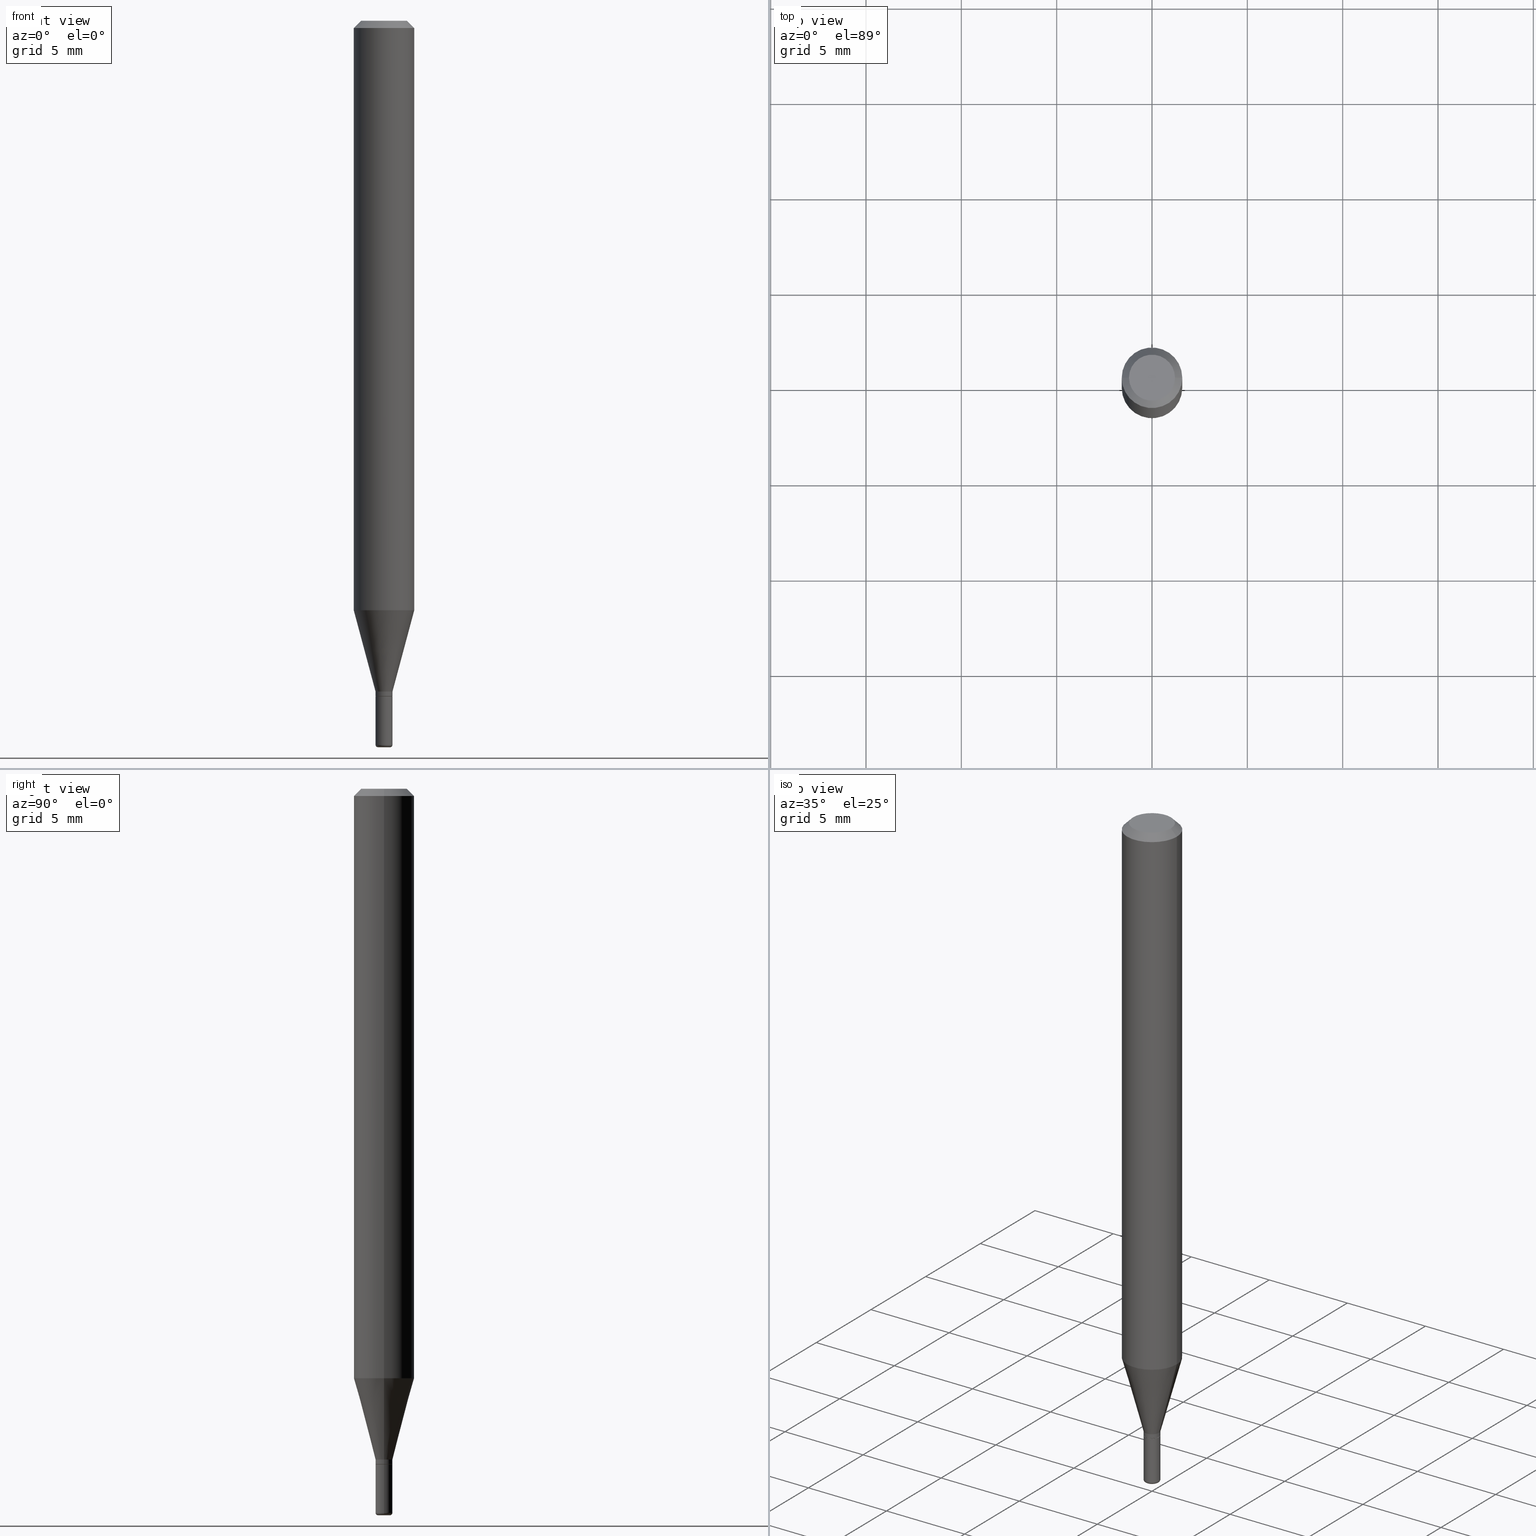
[diagram: canonical four-view strip — front | top / right | iso, engineering-drawing reading convention]
A machine part, canonical four-view strip (front | top / right | iso — engineering-drawing reading convention). The complete STEP part file that produces these views, byte-faithful:
ISO-10303-21;
HEADER;
FILE_DESCRIPTION (( 'STEP AP203' ),
    '1' );
FILE_NAME ('09135.STEP',
    '2024-02-29T22:31:11',
    ( '' ),
    ( '' ),
    'SwSTEP 2.0',
    'SolidWorks 2023',
    '' );
FILE_SCHEMA (( 'CONFIG_CONTROL_DESIGN' ));
ENDSEC;

DATA;
#1 = FACE_OUTER_BOUND ( 'NONE', #110, .T. ) ;
#2 = ORIENTED_EDGE ( 'NONE', *, *, #498, .F. ) ;
#3 = DIRECTION ( 'NONE',  ( -2.445468806185136597E-29, 3.491481338843145583E-15, 1.000000000000000000 ) ) ;
#4 = ORIENTED_EDGE ( 'NONE', *, *, #67, .T. ) ;
#5 = VECTOR ( 'NONE', #32, 39.37007874015748143 ) ;
#6 = EDGE_CURVE ( 'NONE', #114, #484, #309, .T. ) ;
#7 = AXIS2_PLACEMENT_3D ( 'NONE', #220, #346, #135 ) ;
#8 = PLANE ( 'NONE',  #338 ) ;
#9 = LOCAL_TIME ( 17, 31, 11.00000000000000000, #98 ) ;
#10 = ORIENTED_EDGE ( 'NONE', *, *, #216, .F. ) ;
#11 = CARTESIAN_POINT ( 'NONE',  ( -0.06250000000000000000, -3.805245085686841620E-15, -1.217057713659401186 ) ) ;
#12 = MANIFOLD_SOLID_BREP ( 'Body-Move/Copy2[1]', #56 ) ;
#13 = FACE_OUTER_BOUND ( 'NONE', #202, .T. ) ;
#14 = ORIENTED_EDGE ( 'NONE', *, *, #476, .T. ) ;
#15 = EDGE_CURVE ( 'NONE', #233, #161, #86, .T. ) ;
#16 = LINE ( 'NONE', #119, #65 ) ;
#17 = DIRECTION ( 'NONE',  ( 1.000000000000000000, -6.982962677686248567E-15, 0.000000000000000000 ) ) ;
#18 = APPROVAL_PERSON_ORGANIZATION ( #62, #261, #265 ) ;
#19 = ORIENTED_EDGE ( 'NONE', *, *, #45, .F. ) ;
#20 = CARTESIAN_POINT ( 'NONE',  ( -0.01750000000000008493, 1.243449787580181360E-16, -8.608136407946127577E-31 ) ) ;
#21 = EDGE_LOOP ( 'NONE', ( #437, #454, #518, #132 ) ) ;
#22 = PERSON_AND_ORGANIZATION ( #223, #177 ) ;
#23 = CARTESIAN_POINT ( 'NONE',  ( -0.01750000000000008146, -4.258300880613290869E-15, -1.385000000000000453 ) ) ;
#24 = CONICAL_SURFACE ( 'NONE', #480, 0.01750000000000008146, 0.2617993877991494633 ) ;
#25 = AXIS2_PLACEMENT_3D ( 'NONE', #37, #280, #151 ) ;
#26 = MECHANICAL_CONTEXT ( 'NONE', #467, 'mechanical' ) ;
#27 = DIRECTION ( 'NONE',  ( -2.445468806185136597E-29, 3.491481338843145583E-15, 1.000000000000000000 ) ) ;
#28 = COORDINATED_UNIVERSAL_TIME_OFFSET ( 5, 0, .BEHIND. ) ;
#29 = CARTESIAN_POINT ( 'NONE',  ( -0.04750000000000000749, 3.578768372314221353E-16, 2.731847993664239060E-16 ) ) ;
#30 = EDGE_CURVE ( 'NONE', #57, #108, #174, .T. ) ;
#31 = CALENDAR_DATE ( 2024, 29, 2 ) ;
#32 = DIRECTION ( 'NONE',  ( -0.7071067811864267805, 7.493145998869918709E-15, 0.7071067811866682540 ) ) ;
#33 = CONICAL_SURFACE ( 'NONE', #328, 0.01750000000000008146, 0.2617993877991494633 ) ;
#34 = AXIS2_PLACEMENT_3D ( 'NONE', #368, #3, #157 ) ;
#35 = CARTESIAN_POINT ( 'NONE',  ( 3.411428984628265351E-29, -4.870616467686188228E-15, -1.395000000000000018 ) ) ;
#36 = EDGE_CURVE ( 'NONE', #369, #134, #185, .T. ) ;
#37 = CARTESIAN_POINT ( 'NONE',  ( 3.411428984628265351E-29, -4.870616467686188228E-15, -1.395000000000000018 ) ) ;
#38 = ORIENTED_EDGE ( 'NONE', *, *, #30, .T. ) ;
#39 = CYLINDRICAL_SURFACE ( 'NONE', #492, 0.01750000000000009187 ) ;
#40 = EDGE_LOOP ( 'NONE', ( #495, #75, #440, #514 ) ) ;
#41 = DIRECTION ( 'NONE',  ( 1.000000000000000000, -6.982962677686266711E-15, 4.876176775795935232E-29 ) ) ;
#42 = ORIENTED_EDGE ( 'NONE', *, *, #367, .T. ) ;
#43 = CARTESIAN_POINT ( 'NONE',  ( 3.655975865246779122E-29, -5.219764601570503141E-15, -1.495000000000000107 ) ) ;
#44 = ORIENTED_EDGE ( 'NONE', *, *, #410, .T. ) ;
#45 = EDGE_CURVE ( 'NONE', #161, #114, #173, .T. ) ;
#46 = CYLINDRICAL_SURFACE ( 'NONE', #87, 0.01750000000000008493 ) ;
#47 = EDGE_LOOP ( 'NONE', ( #152, #42, #477, #120 ) ) ;
#48 = CIRCLE ( 'NONE', #159, 0.06250000000000000000 ) ;
#49 = LINE ( 'NONE', #489, #364 ) ;
#50 = ORIENTED_EDGE ( 'NONE', *, *, #397, .T. ) ;
#51 = EDGE_CURVE ( 'NONE', #169, #215, #203, .T. ) ;
#52 = CARTESIAN_POINT ( 'NONE',  ( 3.668203209277632395E-31, -5.237222008264614861E-17, -0.01499999999999970281 ) ) ;
#53 = ORIENTED_EDGE ( 'NONE', *, *, #498, .T. ) ;
#54 = DIRECTION ( 'NONE',  ( -2.445468806185136597E-29, 3.491481338843145583E-15, 1.000000000000000000 ) ) ;
#55 = EDGE_LOOP ( 'NONE', ( #378, #323, #88, #10 ) ) ;
#56 = CLOSED_SHELL ( 'NONE', ( #317, #335, #130, #146, #382, #249 ) ) ;
#57 = VERTEX_POINT ( 'NONE', #497 ) ;
#58 = LENGTH_MEASURE_WITH_UNIT ( LENGTH_MEASURE( 0.02539999999999999897 ), #416 );
#59 = VERTEX_POINT ( 'NONE', #11 ) ;
#60 = ADVANCED_FACE ( 'NONE', ( #299 ), #24, .T. ) ;
#61 = DIRECTION ( 'NONE',  ( -2.445468806185136597E-29, 3.491481338843145583E-15, 1.000000000000000000 ) ) ;
#62 = PERSON_AND_ORGANIZATION ( #223, #177 ) ;
#63 = DIRECTION ( 'NONE',  ( -1.000000000000000000, 7.105427357601058657E-15, 0.000000000000000000 ) ) ;
#64 = AXIS2_PLACEMENT_3D ( 'NONE', #271, #307, #313 ) ;
#65 = VECTOR ( 'NONE', #210, 39.37007874015748854 ) ;
#66 = PERSON_AND_ORGANIZATION_ROLE ( 'creator' ) ;
#67 = EDGE_CURVE ( 'NONE', #248, #237, #334, .T. ) ;
#68 = FACE_OUTER_BOUND ( 'NONE', #77, .T. ) ;
#69 = DIRECTION ( 'NONE',  ( -2.445468806185136877E-29, 3.491481338843145188E-15, 1.000000000000000000 ) ) ;
#70 = PERSON_AND_ORGANIZATION ( #223, #177 ) ;
#71 = CYLINDRICAL_SURFACE ( 'NONE', #300, 0.01750000000000008493 ) ;
#72 = CONICAL_SURFACE ( 'NONE', #473, 0.01700000000000008796, 0.7853981633972775267 ) ;
#73 = DIRECTION ( 'NONE',  ( -2.445468806185136597E-29, 3.491481338843145583E-15, 1.000000000000000000 ) ) ;
#74 = CARTESIAN_POINT ( 'NONE',  ( -0.06250000000000000000, 3.840629472727455270E-16, -0.01499999999999970281 ) ) ;
#75 = ORIENTED_EDGE ( 'NONE', *, *, #94, .T. ) ;
#76 = CARTESIAN_POINT ( 'NONE',  ( 0.000000000000000000, 0.000000000000000000, 0.000000000000000000 ) ) ;
#77 = EDGE_LOOP ( 'NONE', ( #479, #117 ) ) ;
#78 = AXIS2_PLACEMENT_3D ( 'NONE', #282, #327, #517 ) ;
#79 = DIRECTION ( 'NONE',  ( -2.445468806185136597E-29, 3.491481338843145583E-15, 1.000000000000000000 ) ) ;
#80 = ORIENTED_EDGE ( 'NONE', *, *, #137, .T. ) ;
#81 = CARTESIAN_POINT ( 'NONE',  ( 3.411428984628265351E-29, -4.870616467686188228E-15, -1.395000000000000018 ) ) ;
#82 = EDGE_LOOP ( 'NONE', ( #242, #80, #53, #409 ) ) ;
#83 = DIRECTION ( 'NONE',  ( -2.445468806185136597E-29, 3.491481338843145583E-15, 1.000000000000000000 ) ) ;
#84 = VERTEX_POINT ( 'NONE', #29 ) ;
#85 = PRODUCT_DEFINITION ( 'UNKNOWN', '', #443, #118 ) ;
#86 = CIRCLE ( 'NONE', #412, 0.01750000000000018208 ) ;
#87 = AXIS2_PLACEMENT_3D ( 'NONE', #230, #190, #148 ) ;
#88 = ORIENTED_EDGE ( 'NONE', *, *, #486, .T. ) ;
#89 = DIRECTION ( 'NONE',  ( 2.445468806185136597E-29, -3.491481338843145583E-15, -1.000000000000000000 ) ) ;
#90 = ORIENTED_EDGE ( 'NONE', *, *, #6, .T. ) ;
#91 = DIRECTION ( 'NONE',  ( -2.438088387897960049E-29, 3.491481338843145188E-15, 1.000000000000000000 ) ) ;
#92 = CARTESIAN_POINT ( 'NONE',  ( 3.386974296566414926E-29, -4.835701654297758156E-15, -1.385000000000000453 ) ) ;
#93 = DIRECTION ( 'NONE',  ( -2.445468806185136597E-29, 3.491481338843145583E-15, 1.000000000000000000 ) ) ;
#94 = EDGE_CURVE ( 'NONE', #369, #161, #254, .T. ) ;
#95 = DIRECTION ( 'NONE',  ( -1.000000000000000000, 6.982962677686265922E-15, -4.876176775795935793E-29 ) ) ;
#96 = PERSON_AND_ORGANIZATION_ROLE ( 'classification_officer' ) ;
#97 = CARTESIAN_POINT ( 'NONE',  ( 0.000000000000000000, 0.000000000000000000, 0.000000000000000000 ) ) ;
#98 = COORDINATED_UNIVERSAL_TIME_OFFSET ( 5, 0, .BEHIND. ) ;
#99 = CARTESIAN_POINT ( 'NONE',  ( 0.000000000000000000, 0.000000000000000000, 0.000000000000000000 ) ) ;
#100 = CONICAL_SURFACE ( 'NONE', #115, 0.06250000000000000000, 0.7853981633974488341 ) ;
#101 = DIRECTION ( 'NONE',  ( -2.445468806185136597E-29, 3.491481338843145583E-15, 1.000000000000000000 ) ) ;
#102 = DIRECTION ( 'NONE',  ( 1.000000000000000000, -6.982962677686266711E-15, 4.876176775795935232E-29 ) ) ;
#103 = DIRECTION ( 'NONE',  ( 1.000000000000000000, -6.982962677686239100E-15, 0.000000000000000000 ) ) ;
#104 = AXIS2_PLACEMENT_3D ( 'NONE', #295, #128, #17 ) ;
#105 = EDGE_CURVE ( 'NONE', #484, #114, #386, .T. ) ;
#106 = CIRCLE ( 'NONE', #515, 0.01750000000000009187 ) ;
#107 = DIRECTION ( 'NONE',  ( 1.000000000000000000, -6.982962677686267499E-15, 0.000000000000000000 ) ) ;
#108 = VERTEX_POINT ( 'NONE', #23 ) ;
#109 = DIRECTION ( 'NONE',  ( -2.438088387897960049E-29, 3.491481338843145188E-15, 1.000000000000000000 ) ) ;
#110 = EDGE_LOOP ( 'NONE', ( #401, #4, #158, #197 ) ) ;
#111 = UNCERTAINTY_MEASURE_WITH_UNIT (LENGTH_MEASURE( 1.000000000000000082E-05 ), #296, 'distance_accuracy_value', 'NONE');
#112 = EDGE_CURVE ( 'NONE', #155, #59, #219, .T. ) ;
#113 = LINE ( 'NONE', #284, #256 ) ;
#114 = VERTEX_POINT ( 'NONE', #507 ) ;
#115 = AXIS2_PLACEMENT_3D ( 'NONE', #289, #89, #383 ) ;
#116 = DIRECTION ( 'NONE',  ( -2.445468806185136597E-29, 3.491481338843145583E-15, 1.000000000000000000 ) ) ;
#117 = ORIENTED_EDGE ( 'NONE', *, *, #422, .T. ) ;
#118 = DESIGN_CONTEXT ( 'detailed design', #494, 'design' ) ;
#119 = CARTESIAN_POINT ( 'NONE',  ( -0.01750000000000008146, -4.711356675539740119E-15, -1.385000000000000453 ) ) ;
#120 = ORIENTED_EDGE ( 'NONE', *, *, #303, .F. ) ;
#121 = ADVANCED_FACE ( 'NONE', ( #68 ), #189, .F. ) ;
#122 = DIRECTION ( 'NONE',  ( -2.445468806185136877E-29, 3.491481338843145188E-15, 1.000000000000000000 ) ) ;
#123 = EDGE_LOOP ( 'NONE', ( #419, #448, #50, #374 ) ) ;
#124 = CIRCLE ( 'NONE', #221, 0.06250000000000000000 ) ;
#125 = FACE_OUTER_BOUND ( 'NONE', #191, .T. ) ;
#126 = DIRECTION ( 'NONE',  ( -2.445468806185136877E-29, 3.491481338843145188E-15, 1.000000000000000000 ) ) ;
#127 = CARTESIAN_POINT ( 'NONE',  ( 0.01750000000000000167, -4.992818314545698211E-15, -1.395000000000000018 ) ) ;
#128 = DIRECTION ( 'NONE',  ( -2.445468806185136597E-29, 3.491481338843145583E-15, 1.000000000000000000 ) ) ;
#129 = DIMENSIONAL_EXPONENTS ( 1.000000000000000000, 0.000000000000000000, 0.000000000000000000, 0.000000000000000000, 0.000000000000000000, 0.000000000000000000, 0.000000000000000000 ) ;
#130 = ADVANCED_FACE ( 'NONE', ( #142 ), #464, .F. ) ;
#131 = CARTESIAN_POINT ( 'NONE',  ( 0.01700000000000008796, -4.989326833206855204E-15, -1.395000000000000018 ) ) ;
#132 = ORIENTED_EDGE ( 'NONE', *, *, #205, .F. ) ;
#133 = CLOSED_SHELL ( 'NONE', ( #193, #359, #509, #170, #60, #153, #372, #426, #121, #438, #231, #390 ) ) ;
#134 = VERTEX_POINT ( 'NONE', #427 ) ;
#135 = DIRECTION ( 'NONE',  ( 1.000000000000000000, 0.000000000000000000, 0.000000000000000000 ) ) ;
#136 = DIRECTION ( 'NONE',  ( -2.445468806185136597E-29, 3.491481338843145583E-15, 1.000000000000000000 ) ) ;
#137 = EDGE_CURVE ( 'NONE', #108, #57, #236, .T. ) ;
#138 = CALENDAR_DATE ( 2024, 29, 2 ) ;
#139 = DIRECTION ( 'NONE',  ( -2.445468806185136597E-29, 3.491481338843145583E-15, 1.000000000000000000 ) ) ;
#140 = APPROVAL ( #392, 'UNSPECIFIED' ) ;
#141 = APPROVAL_DATE_TIME ( #217, #140 ) ;
#142 = FACE_OUTER_BOUND ( 'NONE', #251, .T. ) ;
#143 = AXIS2_PLACEMENT_3D ( 'NONE', #315, #470, #178 ) ;
#144 = PERSON_AND_ORGANIZATION_ROLE ( 'design_supplier' ) ;
#145 = CARTESIAN_POINT ( 'NONE',  ( -0.01750000000000018208, -4.920845555870326069E-15, -1.495000000000000329 ) ) ;
#146 = ADVANCED_FACE ( 'NONE', ( #385 ), #260, .T. ) ;
#147 = DIRECTION ( 'NONE',  ( 1.000000000000000000, -6.982962677686272233E-15, 0.000000000000000000 ) ) ;
#148 = DIRECTION ( 'NONE',  ( 1.000000000000000000, -6.982962677686267499E-15, 4.876176775795935793E-29 ) ) ;
#149 = VERTEX_POINT ( 'NONE', #394 ) ;
#150 = CIRCLE ( 'NONE', #329, 0.04750000000000000749 ) ;
#151 = DIRECTION ( 'NONE',  ( 1.000000000000000000, -6.982962677686239100E-15, 0.000000000000000000 ) ) ;
#152 = ORIENTED_EDGE ( 'NONE', *, *, #422, .F. ) ;
#153 = ADVANCED_FACE ( 'NONE', ( #512 ), #33, .T. ) ;
#154 = FACE_OUTER_BOUND ( 'NONE', #376, .T. ) ;
#155 = VERTEX_POINT ( 'NONE', #183 ) ;
#156 = ADVANCED_BREP_SHAPE_REPRESENTATION ( '09135', ( #12, #181, #7 ), #459 ) ;
#157 = DIRECTION ( 'NONE',  ( 1.000000000000000000, -6.982962677686266711E-15, 4.876176775795935793E-29 ) ) ;
#158 = ORIENTED_EDGE ( 'NONE', *, *, #270, .F. ) ;
#159 = AXIS2_PLACEMENT_3D ( 'NONE', #52, #332, #420 ) ;
#160 = CARTESIAN_POINT ( 'NONE',  ( 3.582686580359767159E-29, -5.359686688179454114E-15, -1.500000000000000444 ) ) ;
#161 = VERTEX_POINT ( 'NONE', #145 ) ;
#162 = DIRECTION ( 'NONE',  ( -1.000000000000000000, 6.982962677686266711E-15, 0.000000000000000000 ) ) ;
#163 = CARTESIAN_POINT ( 'NONE',  ( -0.01750000000000009187, 1.243449787580181853E-16, -8.608136407946129329E-31 ) ) ;
#164 = DIRECTION ( 'NONE',  ( 1.000000000000000000, -6.982962677686266711E-15, 4.852736867747365086E-29 ) ) ;
#165 = DIRECTION ( 'NONE',  ( -2.445468806185136597E-29, 3.491481338843145583E-15, 1.000000000000000000 ) ) ;
#166 = AXIS2_PLACEMENT_3D ( 'NONE', #316, #268, #63 ) ;
#167 = CIRCLE ( 'NONE', #508, 0.04750000000000000749 ) ;
#168 = LINE ( 'NONE', #131, #311 ) ;
#169 = VERTEX_POINT ( 'NONE', #349 ) ;
#170 = ADVANCED_FACE ( 'NONE', ( #186 ), #511, .T. ) ;
#171 = ORIENTED_EDGE ( 'NONE', *, *, #51, .T. ) ;
#172 = COORDINATED_UNIVERSAL_TIME_OFFSET ( 5, 0, .BEHIND. ) ;
#173 = LINE ( 'NONE', #163, #245 ) ;
#174 = CIRCLE ( 'NONE', #353, 0.01750000000000008146 ) ;
#175 = APPROVAL_STATUS ( 'not_yet_approved' ) ;
#176 = VECTOR ( 'NONE', #122, 39.37007874015748143 ) ;
#177 = ORGANIZATION ( 'UNSPECIFIED', 'UNSPECIFIED', '' ) ;
#178 = DIRECTION ( 'NONE',  ( 1.000000000000000000, -6.982962677686267499E-15, 0.000000000000000000 ) ) ;
#179 = APPROVAL_STATUS ( 'not_yet_approved' ) ;
#180 = DIRECTION ( 'NONE',  ( 1.000000000000000000, -6.982962677686272233E-15, 0.000000000000000000 ) ) ;
#181 = MANIFOLD_SOLID_BREP ( 'Body-Move/Copy2[2]', #133 ) ;
#182 = CALENDAR_DATE ( 2024, 29, 2 ) ;
#183 = CARTESIAN_POINT ( 'NONE',  ( 0.06250000000000000000, -4.685769462892295905E-15, -1.217057713659401186 ) ) ;
#184 = APPROVAL_ROLE ( '' ) ;
#185 = CIRCLE ( 'NONE', #402, 0.01250000000000000243 ) ;
#186 = FACE_OUTER_BOUND ( 'NONE', #21, .T. ) ;
#187 = AXIS2_PLACEMENT_3D ( 'NONE', #373, #456, #162 ) ;
#188 = PRODUCT ( '09135', '09135', '', ( #26 ) ) ;
#189 = PLANE ( 'NONE',  #291 ) ;
#190 = DIRECTION ( 'NONE',  ( -2.445468806185136597E-29, 3.491481338843145583E-15, 1.000000000000000000 ) ) ;
#191 = EDGE_LOOP ( 'NONE', ( #381, #344, #499, #171 ) ) ;
#192 = LINE ( 'NONE', #74, #483 ) ;
#193 = ADVANCED_FACE ( 'NONE', ( #396 ), #71, .T. ) ;
#194 = ORIENTED_EDGE ( 'NONE', *, *, #205, .T. ) ;
#195 = CIRCLE ( 'NONE', #143, 0.01750000000000009187 ) ;
#196 = LINE ( 'NONE', #365, #442 ) ;
#197 = ORIENTED_EDGE ( 'NONE', *, *, #486, .F. ) ;
#198 = CC_DESIGN_DATE_AND_TIME_ASSIGNMENT ( #389, #506, ( #85 ) ) ;
#199 = FACE_OUTER_BOUND ( 'NONE', #446, .T. ) ;
#200 = EDGE_LOOP ( 'NONE', ( #259, #44, #240, #399 ) ) ;
#201 = DIRECTION ( 'NONE',  ( -2.445468806185136877E-29, 3.491481338843145188E-15, 1.000000000000000000 ) ) ;
#202 = EDGE_LOOP ( 'NONE', ( #288, #407 ) ) ;
#203 = CIRCLE ( 'NONE', #500, 0.06250000000000000000 ) ;
#204 = AXIS2_PLACEMENT_3D ( 'NONE', #505, #139, #466 ) ;
#205 = EDGE_CURVE ( 'NONE', #155, #215, #425, .T. ) ;
#206 = FACE_OUTER_BOUND ( 'NONE', #47, .T. ) ;
#207 = DIRECTION ( 'NONE',  ( -2.445468806185136597E-29, 3.491481338843145583E-15, 1.000000000000000000 ) ) ;
#208 = CARTESIAN_POINT ( 'NONE',  ( 0.01750000000000009187, -4.991072573876276707E-15, -1.394499999999999851 ) ) ;
#209 = ORIENTED_EDGE ( 'NONE', *, *, #15, .T. ) ;
#210 = DIRECTION ( 'NONE',  ( -0.2588190451025207395, 5.211531920934546309E-15, 0.9659258262890682012 ) ) ;
#211 = ORIENTED_EDGE ( 'NONE', *, *, #36, .F. ) ;
#212 = AXIS2_PLACEMENT_3D ( 'NONE', #408, #73, #513 ) ;
#213 = DIRECTION ( 'NONE',  ( 1.000000000000000000, -6.982962677686292743E-15, 0.000000000000000000 ) ) ;
#214 = CARTESIAN_POINT ( 'NONE',  ( 3.411428984628265351E-29, -4.870616467686188228E-15, -1.395000000000000018 ) ) ;
#215 = VERTEX_POINT ( 'NONE', #357 ) ;
#216 = EDGE_CURVE ( 'NONE', #237, #457, #195, .T. ) ;
#217 = DATE_AND_TIME ( #182, #247 ) ;
#218 = CARTESIAN_POINT ( 'NONE',  ( 3.411428984628265351E-29, -4.870616467686188228E-15, -1.395000000000000018 ) ) ;
#219 = CIRCLE ( 'NONE', #274, 0.06250000000000000000 ) ;
#220 = CARTESIAN_POINT ( 'NONE',  ( 0.000000000000000000, 0.000000000000000000, 0.000000000000000000 ) ) ;
#221 = AXIS2_PLACEMENT_3D ( 'NONE', #273, #61, #347 ) ;
#222 = DIRECTION ( 'NONE',  ( -2.445468806185136597E-29, 3.491481338843145583E-15, 1.000000000000000000 ) ) ;
#223 = PERSON ( 'UNSPECIFIED', 'UNSPECIFIED', 'UNSPECIFIED', ('UNSPECIFIED'), ('UNSPECIFIED'), ('UNSPECIFIED') ) ;
#224 = COORDINATED_UNIVERSAL_TIME_OFFSET ( 5, 0, .BEHIND. ) ;
#225 = DIRECTION ( 'NONE',  ( 1.000000000000000000, -6.982962677686267499E-15, 4.876176775795935793E-29 ) ) ;
#226 = DIRECTION ( 'NONE',  ( 1.000000000000000000, -6.982962677686270655E-15, 0.000000000000000000 ) ) ;
#227 = EDGE_CURVE ( 'NONE', #59, #155, #124, .T. ) ;
#228 = CC_DESIGN_PERSON_AND_ORGANIZATION_ASSIGNMENT ( #463, #96, ( #356 ) ) ;
#229 = FACE_OUTER_BOUND ( 'NONE', #55, .T. ) ;
#230 = CARTESIAN_POINT ( 'NONE',  ( 0.000000000000000000, 0.000000000000000000, 0.000000000000000000 ) ) ;
#231 = ADVANCED_FACE ( 'NONE', ( #229 ), #72, .T. ) ;
#232 = FACE_OUTER_BOUND ( 'NONE', #40, .T. ) ;
#233 = VERTEX_POINT ( 'NONE', #278 ) ;
#234 = CARTESIAN_POINT ( 'NONE',  ( 0.01250000000000000069, -5.307051635041582264E-15, -1.495000000000000107 ) ) ;
#235 = CC_DESIGN_PERSON_AND_ORGANIZATION_ASSIGNMENT ( #429, #66, ( #443 ) ) ;
#236 = CIRCLE ( 'NONE', #362, 0.01750000000000008146 ) ;
#237 = VERTEX_POINT ( 'NONE', #474 ) ;
#238 = CIRCLE ( 'NONE', #481, 0.01250000000000000243 ) ;
#239 = FACE_OUTER_BOUND ( 'NONE', #417, .T. ) ;
#240 = ORIENTED_EDGE ( 'NONE', *, *, #30, .F. ) ;
#241 = FACE_OUTER_BOUND ( 'NONE', #123, .T. ) ;
#242 = ORIENTED_EDGE ( 'NONE', *, *, #476, .F. ) ;
#243 = DIRECTION ( 'NONE',  ( 1.000000000000000000, -6.982962677686239100E-15, 0.000000000000000000 ) ) ;
#244 = ORIENTED_EDGE ( 'NONE', *, *, #94, .F. ) ;
#245 = VECTOR ( 'NONE', #126, 39.37007874015748143 ) ;
#246 = CIRCLE ( 'NONE', #276, 0.005000000000000179648 ) ;
#247 = LOCAL_TIME ( 17, 31, 11.00000000000000000, #28 ) ;
#248 = VERTEX_POINT ( 'NONE', #370 ) ;
#249 = ADVANCED_FACE ( 'NONE', ( #239 ), #8, .F. ) ;
#250 = CARTESIAN_POINT ( 'NONE',  ( -6.680649051745406845E-45, 9.538196290434862081E-31, 2.731847993664263218E-16 ) ) ;
#251 = EDGE_LOOP ( 'NONE', ( #281, #90 ) ) ;
#252 = PLANE ( 'NONE',  #292 ) ;
#253 = DIRECTION ( 'NONE',  ( 1.000000000000000000, -6.982962677686272233E-15, 0.000000000000000000 ) ) ;
#254 = CIRCLE ( 'NONE', #166, 0.005000000000000179648 ) ;
#255 = AXIS2_PLACEMENT_3D ( 'NONE', #43, #322, #439 ) ;
#256 = VECTOR ( 'NONE', #441, 39.37007874015748143 ) ;
#257 = APPLICATION_PROTOCOL_DEFINITION ( 'international standard', 'config_control_design', 1994, #467 ) ;
#258 = APPROVAL_PERSON_ORGANIZATION ( #343, #140, #460 ) ;
#259 = ORIENTED_EDGE ( 'NONE', *, *, #270, .T. ) ;
#260 = CYLINDRICAL_SURFACE ( 'NONE', #428, 0.01750000000000009187 ) ;
#261 = APPROVAL ( #179, 'UNSPECIFIED' ) ;
#262 = CC_DESIGN_PERSON_AND_ORGANIZATION_ASSIGNMENT ( #269, #144, ( #443 ) ) ;
#263 = DATE_TIME_ROLE ( 'classification_date' ) ;
#264 = CARTESIAN_POINT ( 'NONE',  ( 2.976276674081067684E-29, -4.249334295536904236E-15, -1.217057713659401186 ) ) ;
#265 = APPROVAL_ROLE ( '' ) ;
#266 = TOROIDAL_SURFACE ( 'NONE', #212, 0.01250000000000000069, 0.005000000000000179648 ) ;
#267 = CC_DESIGN_SECURITY_CLASSIFICATION ( #356, ( #443 ) ) ;
#268 = DIRECTION ( 'NONE',  ( 7.105427357601001859E-15, 1.000000000000000000, -3.491481338843145583E-15 ) ) ;
#269 = PERSON_AND_ORGANIZATION ( #223, #177 ) ;
#270 = EDGE_CURVE ( 'NONE', #457, #237, #106, .T. ) ;
#271 = CARTESIAN_POINT ( 'NONE',  ( 1.222018468595437807E-16, 0.01749999999999513056, -1.395000000000000018 ) ) ;
#272 = DATE_AND_TIME ( #31, #516 ) ;
#273 = CARTESIAN_POINT ( 'NONE',  ( 2.976276674081067684E-29, -4.249334295536904236E-15, -1.217057713659401186 ) ) ;
#274 = AXIS2_PLACEMENT_3D ( 'NONE', #264, #222, #226 ) ;
#275 = CYLINDRICAL_SURFACE ( 'NONE', #34, 0.06250000000000000000 ) ;
#276 = AXIS2_PLACEMENT_3D ( 'NONE', #234, #403, #406 ) ;
#277 = CC_DESIGN_PERSON_AND_ORGANIZATION_ASSIGNMENT ( #22, #504, ( #188 ) ) ;
#278 = CARTESIAN_POINT ( 'NONE',  ( 0.01750000000000018208, -5.341966448430015491E-15, -1.495000000000000329 ) ) ;
#279 = ORIENTED_EDGE ( 'NONE', *, *, #326, .F. ) ;
#280 = DIRECTION ( 'NONE',  ( -2.445468806185136597E-29, 3.491481338843145583E-15, 1.000000000000000000 ) ) ;
#281 = ORIENTED_EDGE ( 'NONE', *, *, #105, .T. ) ;
#282 = CARTESIAN_POINT ( 'NONE',  ( 3.655975865246779683E-29, -5.219764601570503930E-15, -1.495000000000000329 ) ) ;
#283 = EDGE_LOOP ( 'NONE', ( #38, #14, #361, #2 ) ) ;
#284 = CARTESIAN_POINT ( 'NONE',  ( 0.06250000000000000000, -4.811533449433669144E-16, -0.01499999999999970281 ) ) ;
#285 = EDGE_CURVE ( 'NONE', #161, #233, #413, .T. ) ;
#286 = ORIENTED_EDGE ( 'NONE', *, *, #342, .T. ) ;
#287 = DIRECTION ( 'NONE',  ( 0.7071067811864267805, -2.468850131080992517E-15, 0.7071067811866682540 ) ) ;
#288 = ORIENTED_EDGE ( 'NONE', *, *, #308, .F. ) ;
#289 = CARTESIAN_POINT ( 'NONE',  ( 3.668203209277632395E-31, -5.237222008264614861E-17, -0.01499999999999970281 ) ) ;
#290 = ORIENTED_EDGE ( 'NONE', *, *, #350, .F. ) ;
#291 = AXIS2_PLACEMENT_3D ( 'NONE', #358, #391, #95 ) ;
#292 = AXIS2_PLACEMENT_3D ( 'NONE', #214, #91, #411 ) ;
#293 = APPROVAL ( #175, 'UNSPECIFIED' ) ;
#294 = DIRECTION ( 'NONE',  ( -2.445468806185136877E-29, 3.491481338843145188E-15, 1.000000000000000000 ) ) ;
#295 = CARTESIAN_POINT ( 'NONE',  ( 3.411428984628265351E-29, -4.870616467686188228E-15, -1.395000000000000018 ) ) ;
#296 =( CONVERSION_BASED_UNIT ( 'INCH', #58 ) LENGTH_UNIT ( ) NAMED_UNIT ( #129 ) );
#297 = CARTESIAN_POINT ( 'NONE',  ( 3.655975865246779683E-29, -5.219764601570503930E-15, -1.495000000000000329 ) ) ;
#298 =( NAMED_UNIT ( * ) SI_UNIT ( $, .STERADIAN. ) SOLID_ANGLE_UNIT ( ) );
#299 = FACE_OUTER_BOUND ( 'NONE', #283, .T. ) ;
#300 = AXIS2_PLACEMENT_3D ( 'NONE', #99, #352, #225 ) ;
#301 = COORDINATED_UNIVERSAL_TIME_OFFSET ( 5, 0, .BEHIND. ) ;
#302 = DIRECTION ( 'NONE',  ( -2.445468806185136597E-29, 3.491481338843145583E-15, 1.000000000000000000 ) ) ;
#303 = EDGE_CURVE ( 'NONE', #84, #169, #192, .T. ) ;
#304 = DATE_AND_TIME ( #510, #395 ) ;
#305 = DIRECTION ( 'NONE',  ( 1.000000000000000000, -6.982962677686239100E-15, 0.000000000000000000 ) ) ;
#306 = CALENDAR_DATE ( 2024, 29, 2 ) ;
#307 = DIRECTION ( 'NONE',  ( 2.438088387897960049E-29, -3.491481338843145188E-15, -1.000000000000000000 ) ) ;
#308 = EDGE_CURVE ( 'NONE', #452, #248, #404, .T. ) ;
#309 = CIRCLE ( 'NONE', #104, 0.01750000000000000167 ) ;
#310 = SHAPE_DEFINITION_REPRESENTATION ( #432, #156 ) ;
#311 = VECTOR ( 'NONE', #287, 39.37007874015748143 ) ;
#312 = CC_DESIGN_APPROVAL ( #293, ( #85 ) ) ;
#313 = DIRECTION ( 'NONE',  ( -1.000000000000000000, 6.982962677686265922E-15, -4.876176775795935793E-29 ) ) ;
#314 = SECURITY_CLASSIFICATION_LEVEL ( 'unclassified' ) ;
#315 = CARTESIAN_POINT ( 'NONE',  ( 3.410206250225172549E-29, -4.868870727016765935E-15, -1.394499999999999851 ) ) ;
#316 = CARTESIAN_POINT ( 'NONE',  ( -0.01250000000000000069, -5.130946759600490933E-15, -1.495000000000000107 ) ) ;
#317 = ADVANCED_FACE ( 'NONE', ( #232 ), #501, .T. ) ;
#318 = CARTESIAN_POINT ( 'NONE',  ( 0.01750000000000008493, -1.222018468595102788E-16, 8.533309357642929326E-31 ) ) ;
#319 = CONICAL_SURFACE ( 'NONE', #435, 0.01700000000000008796, 0.7853981633972775267 ) ;
#320 = CC_DESIGN_APPROVAL ( #140, ( #356 ) ) ;
#321 = ORIENTED_EDGE ( 'NONE', *, *, #6, .F. ) ;
#322 = DIRECTION ( 'NONE',  ( -2.445468806185136597E-29, 3.491481338843145583E-15, 1.000000000000000000 ) ) ;
#323 = ORIENTED_EDGE ( 'NONE', *, *, #455, .T. ) ;
#324 = DIRECTION ( 'NONE',  ( -2.445468806185136597E-29, 3.491481338843145583E-15, 1.000000000000000000 ) ) ;
#325 = ORIENTED_EDGE ( 'NONE', *, *, #405, .F. ) ;
#326 = EDGE_CURVE ( 'NONE', #134, #369, #238, .T. ) ;
#327 = DIRECTION ( 'NONE',  ( -2.445468806185136597E-29, 3.491481338843145583E-15, 1.000000000000000000 ) ) ;
#328 = AXIS2_PLACEMENT_3D ( 'NONE', #431, #136, #180 ) ;
#329 = AXIS2_PLACEMENT_3D ( 'NONE', #250, #83, #496 ) ;
#330 = ORIENTED_EDGE ( 'NONE', *, *, #285, .F. ) ;
#331 = APPROVAL_PERSON_ORGANIZATION ( #70, #293, #184 ) ;
#332 = DIRECTION ( 'NONE',  ( -2.445468806185136597E-29, 3.491481338843145583E-15, 1.000000000000000000 ) ) ;
#333 = ORIENTED_EDGE ( 'NONE', *, *, #105, .F. ) ;
#334 = LINE ( 'NONE', #490, #5 ) ;
#335 = ADVANCED_FACE ( 'NONE', ( #154 ), #39, .T. ) ;
#336 = LINE ( 'NONE', #453, #355 ) ;
#337 = ORIENTED_EDGE ( 'NONE', *, *, #45, .T. ) ;
#338 = AXIS2_PLACEMENT_3D ( 'NONE', #160, #109, #436 ) ;
#339 = EDGE_LOOP ( 'NONE', ( #19, #366, #424, #321 ) ) ;
#340 = DIRECTION ( 'NONE',  ( -2.445468806185136597E-29, 3.491481338843145583E-15, 1.000000000000000000 ) ) ;
#341 = DIRECTION ( 'NONE',  ( 1.000000000000000000, -6.982962677686266711E-15, 0.000000000000000000 ) ) ;
#342 = EDGE_CURVE ( 'NONE', #134, #233, #246, .T. ) ;
#343 = PERSON_AND_ORGANIZATION ( #223, #177 ) ;
#344 = ORIENTED_EDGE ( 'NONE', *, *, #469, .F. ) ;
#345 = VECTOR ( 'NONE', #69, 39.37007874015748143 ) ;
#346 = DIRECTION ( 'NONE',  ( 0.000000000000000000, 0.000000000000000000, 1.000000000000000000 ) ) ;
#347 = DIRECTION ( 'NONE',  ( 1.000000000000000000, -6.982962677686270655E-15, 0.000000000000000000 ) ) ;
#348 = PERSON_AND_ORGANIZATION_ROLE ( 'creator' ) ;
#349 = CARTESIAN_POINT ( 'NONE',  ( -0.06250000000000000000, -1.706764047959712450E-15, -0.01499999999999970281 ) ) ;
#350 = EDGE_CURVE ( 'NONE', #233, #484, #196, .T. ) ;
#351 = DATE_AND_TIME ( #306, #415 ) ;
#352 = DIRECTION ( 'NONE',  ( -2.445468806185136597E-29, 3.491481338843145583E-15, 1.000000000000000000 ) ) ;
#353 = AXIS2_PLACEMENT_3D ( 'NONE', #92, #302, #253 ) ;
#354 = APPROVAL_DATE_TIME ( #351, #293 ) ;
#355 = VECTOR ( 'NONE', #294, 39.37007874015748143 ) ;
#356 = SECURITY_CLASSIFICATION ( '', '', #314 ) ;
#357 = CARTESIAN_POINT ( 'NONE',  ( 0.06250000000000000000, -4.888073874380378612E-16, -0.01499999999999970281 ) ) ;
#358 = CARTESIAN_POINT ( 'NONE',  ( 3.316907271900976589E-16, 0.04750000000000000749, -2.925296391183627249E-17 ) ) ;
#359 = ADVANCED_FACE ( 'NONE', ( #1 ), #319, .T. ) ;
#360 = LINE ( 'NONE', #318, #387 ) ;
#361 = ORIENTED_EDGE ( 'NONE', *, *, #112, .F. ) ;
#362 = AXIS2_PLACEMENT_3D ( 'NONE', #468, #101, #147 ) ;
#363 = DIRECTION ( 'NONE',  ( -0.7071067811865479058, 2.468850131082261005E-15, -0.7071067811865471286 ) ) ;
#364 = VECTOR ( 'NONE', #449, 39.37007874015748854 ) ;
#365 = CARTESIAN_POINT ( 'NONE',  ( 0.01750000000000009187, -1.222018468595103035E-16, 8.533309357642931078E-31 ) ) ;
#366 = ORIENTED_EDGE ( 'NONE', *, *, #285, .T. ) ;
#367 = EDGE_CURVE ( 'NONE', #149, #215, #113, .T. ) ;
#368 = CARTESIAN_POINT ( 'NONE',  ( 0.000000000000000000, 0.000000000000000000, 0.000000000000000000 ) ) ;
#369 = VERTEX_POINT ( 'NONE', #445 ) ;
#370 = CARTESIAN_POINT ( 'NONE',  ( -0.01700000000000008796, -4.747174975432858310E-15, -1.395000000000000018 ) ) ;
#371 = ORIENTED_EDGE ( 'NONE', *, *, #51, .F. ) ;
#372 = ADVANCED_FACE ( 'NONE', ( #199 ), #275, .T. ) ;
#373 = CARTESIAN_POINT ( 'NONE',  ( 3.668203209277632395E-31, -5.237222008264614861E-17, -0.01499999999999970281 ) ) ;
#374 = ORIENTED_EDGE ( 'NONE', *, *, #137, .F. ) ;
#375 = CARTESIAN_POINT ( 'NONE',  ( 3.411428984628265351E-29, -4.870616467686188228E-15, -1.395000000000000018 ) ) ;
#376 = EDGE_LOOP ( 'NONE', ( #209, #337, #333, #290 ) ) ;
#377 = PRODUCT_RELATED_PRODUCT_CATEGORY ( 'detail', '', ( #188 ) ) ;
#378 = ORIENTED_EDGE ( 'NONE', *, *, #67, .F. ) ;
#379 = CIRCLE ( 'NONE', #451, 0.01700000000000008796 ) ;
#380 =( NAMED_UNIT ( * ) PLANE_ANGLE_UNIT ( ) SI_UNIT ( $, .RADIAN. ) );
#381 = ORIENTED_EDGE ( 'NONE', *, *, #367, .F. ) ;
#382 = ADVANCED_FACE ( 'NONE', ( #398 ), #266, .T. ) ;
#383 = DIRECTION ( 'NONE',  ( -1.000000000000000000, 6.982962677686266711E-15, 0.000000000000000000 ) ) ;
#384 = DIRECTION ( 'NONE',  ( 1.000000000000000000, -6.982962677686272233E-15, 0.000000000000000000 ) ) ;
#385 = FACE_OUTER_BOUND ( 'NONE', #339, .T. ) ;
#386 = CIRCLE ( 'NONE', #450, 0.01750000000000000167 ) ;
#387 = VECTOR ( 'NONE', #485, 39.37007874015748143 ) ;
#388 = CC_DESIGN_APPROVAL ( #261, ( #443 ) ) ;
#389 = DATE_AND_TIME ( #138, #9 ) ;
#390 = ADVANCED_FACE ( 'NONE', ( #241 ), #46, .T. ) ;
#391 = DIRECTION ( 'NONE',  ( 2.438088387897960049E-29, -3.491481338843145188E-15, -1.000000000000000000 ) ) ;
#392 = APPROVAL_STATUS ( 'not_yet_approved' ) ;
#393 = CARTESIAN_POINT ( 'NONE',  ( 0.06250000000000000000, -4.364351673553916694E-16, 3.047610484872459871E-30 ) ) ;
#394 = CARTESIAN_POINT ( 'NONE',  ( 0.04750000000000000749, -4.035134999187568762E-16, 2.731847993664288856E-16 ) ) ;
#395 = LOCAL_TIME ( 17, 31, 11.00000000000000000, #301 ) ;
#396 = FACE_OUTER_BOUND ( 'NONE', #200, .T. ) ;
#397 = EDGE_CURVE ( 'NONE', #457, #57, #360, .T. ) ;
#398 = FACE_OUTER_BOUND ( 'NONE', #487, .T. ) ;
#399 = ORIENTED_EDGE ( 'NONE', *, *, #397, .F. ) ;
#400 = DIRECTION ( 'NONE',  ( 1.000000000000000000, -6.982962677686292743E-15, 0.000000000000000000 ) ) ;
#401 = ORIENTED_EDGE ( 'NONE', *, *, #308, .T. ) ;
#402 = AXIS2_PLACEMENT_3D ( 'NONE', #493, #414, #213 ) ;
#403 = DIRECTION ( 'NONE',  ( -6.982962677686266711E-15, -1.000000000000000000, 3.491481338843145583E-15 ) ) ;
#404 = CIRCLE ( 'NONE', #25, 0.01700000000000008796 ) ;
#405 = EDGE_CURVE ( 'NONE', #59, #169, #336, .T. ) ;
#406 = DIRECTION ( 'NONE',  ( 1.000000000000000000, -6.982962677686276177E-15, 0.000000000000000000 ) ) ;
#407 = ORIENTED_EDGE ( 'NONE', *, *, #455, .F. ) ;
#408 = CARTESIAN_POINT ( 'NONE',  ( 3.655975865246779122E-29, -5.219764601570503141E-15, -1.495000000000000107 ) ) ;
#409 = ORIENTED_EDGE ( 'NONE', *, *, #227, .F. ) ;
#410 = EDGE_CURVE ( 'NONE', #237, #108, #447, .T. ) ;
#411 = DIRECTION ( 'NONE',  ( 1.000000000000000000, -6.982962677686265922E-15, 4.876176775795935793E-29 ) ) ;
#412 = AXIS2_PLACEMENT_3D ( 'NONE', #297, #165, #421 ) ;
#413 = CIRCLE ( 'NONE', #78, 0.01750000000000018208 ) ;
#414 = DIRECTION ( 'NONE',  ( -2.445468806185136597E-29, 3.491481338843145583E-15, 1.000000000000000000 ) ) ;
#415 = LOCAL_TIME ( 17, 31, 11.00000000000000000, #172 ) ;
#416 =( LENGTH_UNIT ( ) NAMED_UNIT ( * ) SI_UNIT ( $, .METRE. ) );
#417 = EDGE_LOOP ( 'NONE', ( #279, #211 ) ) ;
#418 = CARTESIAN_POINT ( 'NONE',  ( 0.01700000000000008796, -4.989326833206855204E-15, -1.395000000000000018 ) ) ;
#419 = ORIENTED_EDGE ( 'NONE', *, *, #410, .F. ) ;
#420 = DIRECTION ( 'NONE',  ( 1.000000000000000000, -6.982962677686266711E-15, 0.000000000000000000 ) ) ;
#421 = DIRECTION ( 'NONE',  ( 1.000000000000000000, -6.982962677686288010E-15, 0.000000000000000000 ) ) ;
#422 = EDGE_CURVE ( 'NONE', #149, #84, #150, .T. ) ;
#423 = CONICAL_SURFACE ( 'NONE', #187, 0.06250000000000000000, 0.7853981633974488341 ) ;
#424 = ORIENTED_EDGE ( 'NONE', *, *, #350, .T. ) ;
#425 = LINE ( 'NONE', #393, #345 ) ;
#426 = ADVANCED_FACE ( 'NONE', ( #125 ), #100, .T. ) ;
#427 = CARTESIAN_POINT ( 'NONE',  ( 0.01250000000000000243, -5.324509041735798088E-15, -1.500000000000000444 ) ) ;
#428 = AXIS2_PLACEMENT_3D ( 'NONE', #97, #27, #102 ) ;
#429 = PERSON_AND_ORGANIZATION ( #223, #177 ) ;
#430 = DIRECTION ( 'NONE',  ( 1.000000000000000000, -6.982962677686248567E-15, 0.000000000000000000 ) ) ;
#431 = CARTESIAN_POINT ( 'NONE',  ( 3.386974296566414926E-29, -4.835701654297758156E-15, -1.385000000000000453 ) ) ;
#432 = PRODUCT_DEFINITION_SHAPE ( 'NONE', 'NONE',  #85 ) ;
#433 = APPLICATION_PROTOCOL_DEFINITION ( 'international standard', 'config_control_design', 1994, #494 ) ;
#434 = DIRECTION ( 'NONE',  ( -2.445468806185136597E-29, 3.491481338843145583E-15, 1.000000000000000000 ) ) ;
#435 = AXIS2_PLACEMENT_3D ( 'NONE', #81, #324, #103 ) ;
#436 = DIRECTION ( 'NONE',  ( 1.000000000000000000, -6.982962677686265922E-15, 4.876176775795935793E-29 ) ) ;
#437 = ORIENTED_EDGE ( 'NONE', *, *, #112, .T. ) ;
#438 = ADVANCED_FACE ( 'NONE', ( #13 ), #252, .F. ) ;
#439 = DIRECTION ( 'NONE',  ( 1.000000000000000000, -6.982962677686288799E-15, 4.883557194083120748E-29 ) ) ;
#440 = ORIENTED_EDGE ( 'NONE', *, *, #15, .F. ) ;
#441 = DIRECTION ( 'NONE',  ( 0.7071067811865479058, -7.319954787623257623E-15, -0.7071067811865471286 ) ) ;
#442 = VECTOR ( 'NONE', #201, 39.37007874015748143 ) ;
#443 = PRODUCT_DEFINITION_FORMATION_WITH_SPECIFIED_SOURCE ( 'ANY', '', #188, .NOT_KNOWN. ) ;
#444 = ORIENTED_EDGE ( 'NONE', *, *, #227, .T. ) ;
#445 = CARTESIAN_POINT ( 'NONE',  ( -0.01250000000000000243, -5.121911894553596325E-15, -1.500000000000000444 ) ) ;
#446 = EDGE_LOOP ( 'NONE', ( #325, #444, #194, #371 ) ) ;
#447 = LINE ( 'NONE', #20, #176 ) ;
#448 = ORIENTED_EDGE ( 'NONE', *, *, #216, .T. ) ;
#449 = DIRECTION ( 'NONE',  ( 0.2588190451025207395, 1.565188264969626109E-15, 0.9659258262890682012 ) ) ;
#450 = AXIS2_PLACEMENT_3D ( 'NONE', #218, #434, #430 ) ;
#451 = AXIS2_PLACEMENT_3D ( 'NONE', #375, #54, #243 ) ;
#452 = VERTEX_POINT ( 'NONE', #418 ) ;
#453 = CARTESIAN_POINT ( 'NONE',  ( -0.06250000000000000000, 4.440892098500626162E-16, -3.074334431409316114E-30 ) ) ;
#454 = ORIENTED_EDGE ( 'NONE', *, *, #405, .T. ) ;
#455 = EDGE_CURVE ( 'NONE', #248, #452, #379, .T. ) ;
#456 = DIRECTION ( 'NONE',  ( 2.445468806185136597E-29, -3.491481338843145583E-15, -1.000000000000000000 ) ) ;
#457 = VERTEX_POINT ( 'NONE', #208 ) ;
#458 = CARTESIAN_POINT ( 'NONE',  ( 3.386974296566414926E-29, -4.835701654297758156E-15, -1.385000000000000453 ) ) ;
#459 =( GEOMETRIC_REPRESENTATION_CONTEXT ( 3 ) GLOBAL_UNCERTAINTY_ASSIGNED_CONTEXT ( ( #111 ) ) GLOBAL_UNIT_ASSIGNED_CONTEXT ( ( #296, #380, #298 ) ) REPRESENTATION_CONTEXT ( 'NONE', 'WORKASPACE' ) );
#460 = APPROVAL_ROLE ( '' ) ;
#461 = CARTESIAN_POINT ( 'NONE',  ( 3.668203209277632395E-31, -5.237222008264614861E-17, -0.01499999999999970281 ) ) ;
#462 = EDGE_CURVE ( 'NONE', #215, #169, #48, .T. ) ;
#463 = PERSON_AND_ORGANIZATION ( #223, #177 ) ;
#464 = PLANE ( 'NONE',  #64 ) ;
#465 = APPROVAL_DATE_TIME ( #304, #261 ) ;
#466 = DIRECTION ( 'NONE',  ( 1.000000000000000000, -6.982962677686266711E-15, 4.876176775795935793E-29 ) ) ;
#467 = APPLICATION_CONTEXT ( 'configuration controlled 3d designs of mechanical parts and assemblies' ) ;
#468 = CARTESIAN_POINT ( 'NONE',  ( 3.386974296566414926E-29, -4.835701654297758156E-15, -1.385000000000000453 ) ) ;
#469 = EDGE_CURVE ( 'NONE', #84, #149, #167, .T. ) ;
#470 = DIRECTION ( 'NONE',  ( -2.445468806185136597E-29, 3.491481338843145583E-15, 1.000000000000000000 ) ) ;
#471 = CC_DESIGN_DATE_AND_TIME_ASSIGNMENT ( #272, #263, ( #356 ) ) ;
#472 = DIRECTION ( 'NONE',  ( -2.445468806185136597E-29, 3.491481338843145583E-15, 1.000000000000000000 ) ) ;
#473 = AXIS2_PLACEMENT_3D ( 'NONE', #35, #503, #305 ) ;
#474 = CARTESIAN_POINT ( 'NONE',  ( -0.01750000000000009187, -4.744525748258747898E-15, -1.394499999999999851 ) ) ;
#475 = ORIENTED_EDGE ( 'NONE', *, *, #36, .T. ) ;
#476 = EDGE_CURVE ( 'NONE', #108, #59, #16, .T. ) ;
#477 = ORIENTED_EDGE ( 'NONE', *, *, #462, .T. ) ;
#478 = CARTESIAN_POINT ( 'NONE',  ( 3.668203209277706016E-29, -5.237222008264719754E-15, -1.500000000000000444 ) ) ;
#479 = ORIENTED_EDGE ( 'NONE', *, *, #469, .T. ) ;
#480 = AXIS2_PLACEMENT_3D ( 'NONE', #458, #93, #384 ) ;
#481 = AXIS2_PLACEMENT_3D ( 'NONE', #478, #79, #400 ) ;
#482 = CARTESIAN_POINT ( 'NONE',  ( 3.410206250225172549E-29, -4.868870727016765935E-15, -1.394499999999999851 ) ) ;
#483 = VECTOR ( 'NONE', #363, 39.37007874015748143 ) ;
#484 = VERTEX_POINT ( 'NONE', #127 ) ;
#485 = DIRECTION ( 'NONE',  ( -2.445468806185136877E-29, 3.491481338843145188E-15, 1.000000000000000000 ) ) ;
#486 = EDGE_CURVE ( 'NONE', #452, #457, #168, .T. ) ;
#487 = EDGE_LOOP ( 'NONE', ( #244, #475, #286, #330 ) ) ;
#488 = CC_DESIGN_PERSON_AND_ORGANIZATION_ASSIGNMENT ( #502, #348, ( #85 ) ) ;
#489 = CARTESIAN_POINT ( 'NONE',  ( 0.01750000000000008146, -4.957903501157268139E-15, -1.385000000000000453 ) ) ;
#490 = CARTESIAN_POINT ( 'NONE',  ( -0.01700000000000008796, -4.749824202606970300E-15, -1.395000000000000018 ) ) ;
#491 = CARTESIAN_POINT ( 'NONE',  ( -6.680649051745406845E-45, 9.538196290434862081E-31, 2.731847993664263218E-16 ) ) ;
#492 = AXIS2_PLACEMENT_3D ( 'NONE', #76, #116, #41 ) ;
#493 = CARTESIAN_POINT ( 'NONE',  ( 3.668203209277706016E-29, -5.237222008264719754E-15, -1.500000000000000444 ) ) ;
#494 = APPLICATION_CONTEXT ( 'configuration controlled 3d designs of mechanical parts and assemblies' ) ;
#495 = ORIENTED_EDGE ( 'NONE', *, *, #326, .T. ) ;
#496 = DIRECTION ( 'NONE',  ( 1.000000000000000000, -6.982962677686266711E-15, 4.852736867747365086E-29 ) ) ;
#497 = CARTESIAN_POINT ( 'NONE',  ( 0.01750000000000008146, -4.957903501157268139E-15, -1.385000000000000453 ) ) ;
#498 = EDGE_CURVE ( 'NONE', #57, #155, #49, .T. ) ;
#499 = ORIENTED_EDGE ( 'NONE', *, *, #303, .T. ) ;
#500 = AXIS2_PLACEMENT_3D ( 'NONE', #461, #207, #341 ) ;
#501 = TOROIDAL_SURFACE ( 'NONE', #255, 0.01250000000000000069, 0.005000000000000179648 ) ;
#502 = PERSON_AND_ORGANIZATION ( #223, #177 ) ;
#503 = DIRECTION ( 'NONE',  ( -2.445468806185136597E-29, 3.491481338843145583E-15, 1.000000000000000000 ) ) ;
#504 = PERSON_AND_ORGANIZATION_ROLE ( 'design_owner' ) ;
#505 = CARTESIAN_POINT ( 'NONE',  ( 0.000000000000000000, 0.000000000000000000, 0.000000000000000000 ) ) ;
#506 = DATE_TIME_ROLE ( 'creation_date' ) ;
#507 = CARTESIAN_POINT ( 'NONE',  ( -0.01750000000000000167, -4.920845555870328436E-15, -1.395000000000000018 ) ) ;
#508 = AXIS2_PLACEMENT_3D ( 'NONE', #491, #340, #164 ) ;
#509 = ADVANCED_FACE ( 'NONE', ( #206 ), #423, .T. ) ;
#510 = CALENDAR_DATE ( 2024, 29, 2 ) ;
#511 = CYLINDRICAL_SURFACE ( 'NONE', #204, 0.06250000000000000000 ) ;
#512 = FACE_OUTER_BOUND ( 'NONE', #82, .T. ) ;
#513 = DIRECTION ( 'NONE',  ( 1.000000000000000000, -6.982962677686288799E-15, 4.883557194083120748E-29 ) ) ;
#514 = ORIENTED_EDGE ( 'NONE', *, *, #342, .F. ) ;
#515 = AXIS2_PLACEMENT_3D ( 'NONE', #482, #472, #107 ) ;
#516 = LOCAL_TIME ( 17, 31, 11.00000000000000000, #224 ) ;
#517 = DIRECTION ( 'NONE',  ( 1.000000000000000000, -6.982962677686288010E-15, 0.000000000000000000 ) ) ;
#518 = ORIENTED_EDGE ( 'NONE', *, *, #462, .F. ) ;
ENDSEC;
END-ISO-10303-21;
